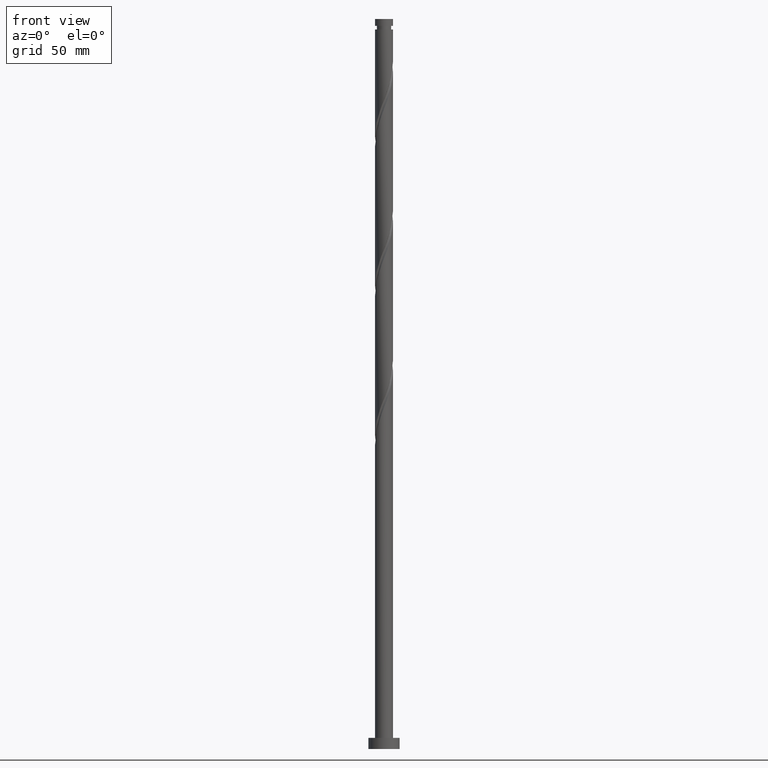
[diagram: clean part render]
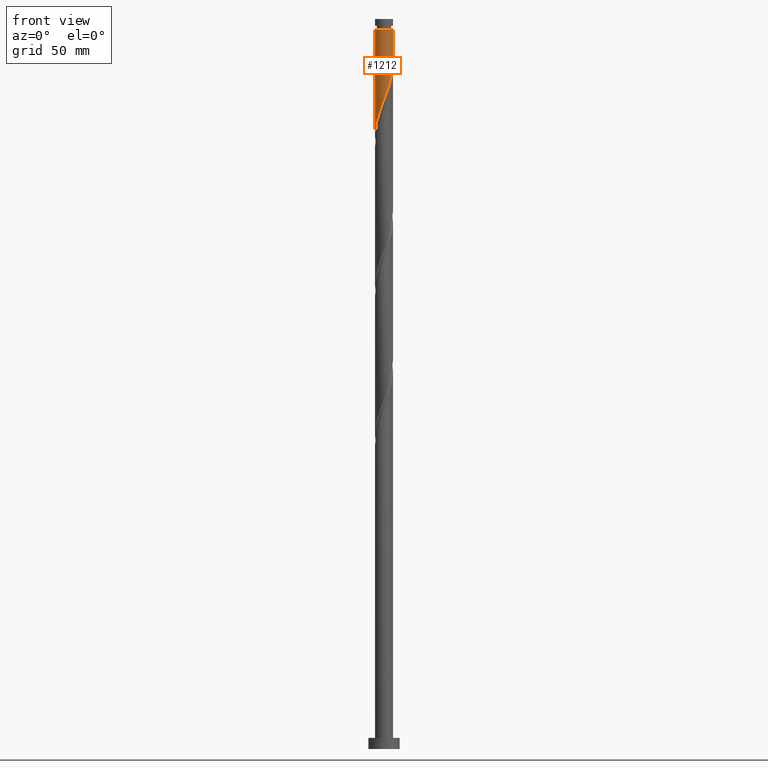
[diagram: same view with one face highlighted and labeled with its STEP entity id]
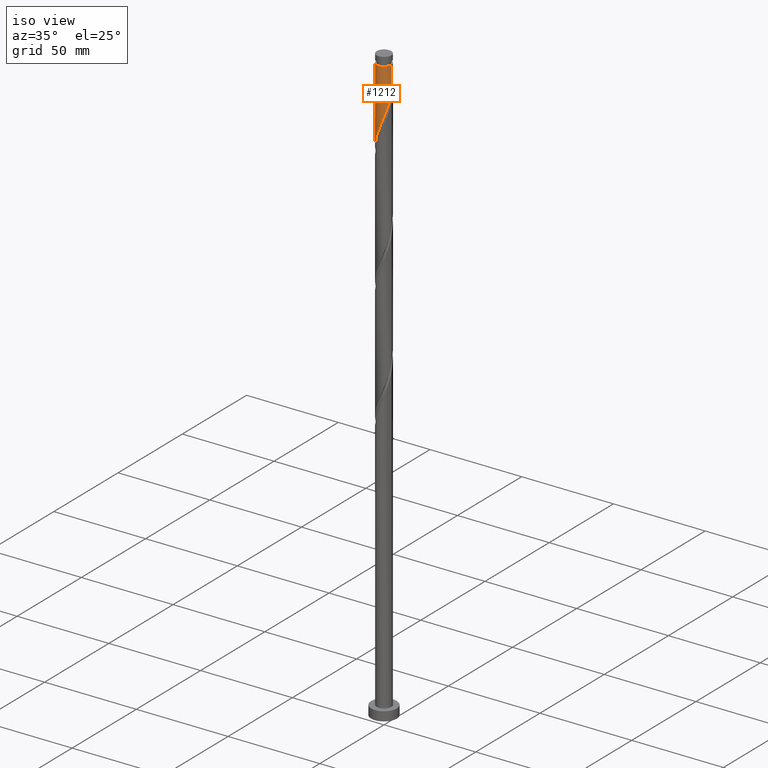
[diagram: same view with one face highlighted and labeled with its STEP entity id]
A machine part, front view. The second image highlights one B-rep face of the part: STEP entity #1212.
A second angle (iso view) of the same face is appended — the face is thin or edge-on in the first view.
In plain terms, the highlighted cylindrical surface (edge-blend (fillet) strip) has radius 4 mm, axis along (-0, -0, -1).
Its self-contained STEP definition (entity closure, byte-faithful):
#20 = CARTESIAN_POINT ( 'NONE',  ( 3.815322223626529397, -1.201381009464323579, 303.5306022984688070 ) ) ;
#97 = VERTEX_POINT ( 'NONE', #1484 ) ;
#170 = VECTOR ( 'NONE', #1488, 1000.000000000000000 ) ;
#182 = CARTESIAN_POINT ( 'NONE',  ( 0.4568176844692852789, -3.996006507438224276, 291.3083800762464648 ) ) ;
#192 = CARTESIAN_POINT ( 'NONE',  ( 3.689051991364074468, -1.602387534070728536, 302.4194911873575506 ) ) ;
#202 = CARTESIAN_POINT ( 'NONE',  ( -3.792814557677647969, -1.270652482415433715, 276.8639356318021782 ) ) ;
#213 = EDGE_LOOP ( 'NONE', ( #1141, #1260, #852, #1477 ) ) ;
#241 = DIRECTION ( 'NONE',  ( -0.000000000000000000, -0.000000000000000000, -1.000000000000000000 ) ) ;
#326 = CARTESIAN_POINT ( 'NONE',  ( -0.7959899496852983480, -3.919999999999999929, 287.9750467429132073 ) ) ;
#354 = VERTEX_POINT ( 'NONE', #910 ) ;
#355 = CARTESIAN_POINT ( 'NONE',  ( -3.926365515130356698, -0.8720116088262001020, 275.7528245206909219 ) ) ;
#364 = CARTESIAN_POINT ( 'NONE',  ( -1.593609487498514721, -3.668842978563503721, 285.7528245206910356 ) ) ;
#389 = EDGE_CURVE ( 'NONE', #627, #97, #407, .T. ) ;
#407 =( BOUNDED_CURVE ( )  B_SPLINE_CURVE ( 2, ( #1375, #1226, #1725, #1302, #20, #192, #683, #1267, #1459, #525, #1897, #494, #1293, #1908, #1757, #182, #1276, #1139, #326, #958, #364, #993, #487, #515, #817, #827, #1608, #1749, #202, #355, #1568, #807, #974 ),
 .UNSPECIFIED., .F., .T. ) 
 B_SPLINE_CURVE_WITH_KNOTS ( ( 3, 2, 2, 2, 2, 2, 2, 2, 2, 2, 2, 2, 2, 2, 2, 2, 3 ),
 ( 0.3045286012773113504, 0.3083333333333333481, 0.3166666666666666519, 0.3250000000000000111, 0.3333333333333333148, 0.3416666666666666741, 0.3499999999999999778, 0.3583333333333333370, 0.3666666666666666408, 0.3750000000000000000, 0.3833333333333333592, 0.3916666666666666630, 0.4000000000000000222, 0.4083333333333333259, 0.4166666666666666852, 0.4249999999999999889, 0.4295286012773115725 ),
 .UNSPECIFIED. ) 
 CURVE ( )  GEOMETRIC_REPRESENTATION_ITEM ( )  RATIONAL_B_SPLINE_CURVE ( ( 0.9066196499552254817, 0.9068171577856382060, 0.9090909090909370383, 0.9041108139711855340, 0.9090909090909370383, 0.9041108139711855340, 0.9090909090909370383, 0.9041108139711855340, 0.9090909090909370383, 0.9041108139711855340, 0.9090909090909370383, 0.9041108139711855340, 0.9090909090909370383, 0.9041108139711855340, 0.9090909090909370383, 0.9041108139711855340, 0.9090909090909370383, 0.9041108139711855340, 0.9090909090909370383, 0.9041108139711855340, 0.9090909090909370383, 0.9041108139711855340, 0.9090909090909370383, 0.9041108139711855340, 0.9090909090909370383, 0.9041108139711855340, 0.9090909090909370383, 0.9041108139711855340, 0.9090909090909370383, 0.9041108139711855340, 0.9090909090909370383, 0.9063845652764842553, 0.9066196499552254817 ) ) 
 REPRESENTATION_ITEM ( '' )  );
#428 = CARTESIAN_POINT ( 'NONE',  ( 0.000000000000000000, 0.000000000000000000, 326.0000000000000000 ) ) ;
#487 = CARTESIAN_POINT ( 'NONE',  ( -2.321580643721303794, -3.257339913901921680, 283.5306022984686933 ) ) ;
#494 = CARTESIAN_POINT ( 'NONE',  ( 2.042645993162201190, -3.464729102101767211, 295.7528245206909787 ) ) ;
#515 = CARTESIAN_POINT ( 'NONE',  ( -2.663940864372329465, -3.013331955735995660, 282.4194911873576075 ) ) ;
#520 = CARTESIAN_POINT ( 'NONE',  ( -4.000000000000000000, 0.000000000000000000, 326.0000000000000000 ) ) ;
#525 = CARTESIAN_POINT ( 'NONE',  ( 2.718366963203605824, -2.964326476232961749, 297.9750467429132641 ) ) ;
#542 = CARTESIAN_POINT ( 'NONE',  ( -3.999999999999972466, 0.000000000000000000, 321.3083800762465785 ) ) ;
#627 = VERTEX_POINT ( 'NONE', #1460 ) ;
#635 = DIRECTION ( 'NONE',  ( -1.000000000000000000, 0.000000000000000000, 0.000000000000000000 ) ) ;
#683 = CARTESIAN_POINT ( 'NONE',  ( 3.482167122072584942, -1.968378046503447942, 301.3083800762466353 ) ) ;
#739 = VECTOR ( 'NONE', #241, 1000.000000000000000 ) ;
#807 = CARTESIAN_POINT ( 'NONE',  ( -4.000000000000000888, -0.2278949497857238604, 274.0394146291525885 ) ) ;
#817 = CARTESIAN_POINT ( 'NONE',  ( -2.948087585633560437, -2.703475464551747365, 281.3083800762466353 ) ) ;
#827 = CARTESIAN_POINT ( 'NONE',  ( -3.232234306894790077, -2.393618973367496405, 280.1972689651353789 ) ) ;
#852 = ORIENTED_EDGE ( 'NONE', *, *, #1649, .T. ) ;
#855 = EDGE_CURVE ( 'NONE', #354, #627, #1609, .T. ) ;
#876 = CIRCLE ( 'NONE', #1761, 3.999999999999972466 ) ;
#910 = CARTESIAN_POINT ( 'NONE',  ( 3.999999999999972466, 4.898587196589395079E-16, 321.3083800762465785 ) ) ;
#958 = CARTESIAN_POINT ( 'NONE',  ( -1.207998551926750652, -3.836338085059161518, 286.8639356318020646 ) ) ;
#974 = CARTESIAN_POINT ( 'NONE',  ( -3.999999999999999112, 7.294826725284631319E-15, 273.4338233197680665 ) ) ;
#993 = CARTESIAN_POINT ( 'NONE',  ( -1.979220423070277013, -3.501347872067846367, 284.6417134095798360 ) ) ;
#1006 = CARTESIAN_POINT ( 'NONE',  ( 4.000000000000000000, 4.898587196589412829E-16, 326.0000000000000000 ) ) ;
#1060 = AXIS2_PLACEMENT_3D ( 'NONE', #428, #2014, #635 ) ;
#1097 = DIRECTION ( 'NONE',  ( -1.000000000000000000, 0.000000000000000000, 0.000000000000000000 ) ) ;
#1134 = DIRECTION ( 'NONE',  ( -0.000000000000000000, -0.000000000000000000, -1.000000000000000000 ) ) ;
#1139 = CARTESIAN_POINT ( 'NONE',  ( -0.3839813474438479313, -4.003661914940837008, 289.0861578540243499 ) ) ;
#1141 = ORIENTED_EDGE ( 'NONE', *, *, #855, .F. ) ;
#1212 = ADVANCED_FACE ( 'NONE', ( #1813 ), #1833, .T. ) ;
#1226 = CARTESIAN_POINT ( 'NONE',  ( 3.999999999999999112, -0.1913759971469955190, 306.2586081275373999 ) ) ;
#1260 = ORIENTED_EDGE ( 'NONE', *, *, #1426, .T. ) ;
#1267 = CARTESIAN_POINT ( 'NONE',  ( 3.275282252781091863, -2.334368558936170679, 300.1972689651354358 ) ) ;
#1271 = CARTESIAN_POINT ( 'NONE',  ( 0.000000000000000000, 0.000000000000000000, 321.3083800762465785 ) ) ;
#1276 = CARTESIAN_POINT ( 'NONE',  ( 0.03641816851271873628, -3.999834211189531086, 290.1972689651354358 ) ) ;
#1293 = CARTESIAN_POINT ( 'NONE',  ( 1.660148792339428692, -3.639217771347840191, 294.6417134095799497 ) ) ;
#1302 = CARTESIAN_POINT ( 'NONE',  ( 3.941592455888983437, -0.8003744848579144033, 304.6417134095798360 ) ) ;
#1375 = CARTESIAN_POINT ( 'NONE',  ( 3.999999999999999112, 2.287107559361780218E-15, 306.7671566531013809 ) ) ;
#1426 = EDGE_CURVE ( 'NONE', #354, #1662, #876, .T. ) ;
#1459 = CARTESIAN_POINT ( 'NONE',  ( 2.996824607992349065, -2.649347517584566436, 299.0861578540242931 ) ) ;
#1460 = CARTESIAN_POINT ( 'NONE',  ( 3.999999999999999112, 2.287107559361780218E-15, 306.7671566531013809 ) ) ;
#1477 = ORIENTED_EDGE ( 'NONE', *, *, #389, .F. ) ;
#1484 = CARTESIAN_POINT ( 'NONE',  ( -3.999999999999999112, 7.294826725284631319E-15, 273.4338233197680665 ) ) ;
#1488 = DIRECTION ( 'NONE',  ( -0.000000000000000000, -0.000000000000000000, -1.000000000000000000 ) ) ;
#1568 = CARTESIAN_POINT ( 'NONE',  ( -3.974115965681418672, -0.4543151893961394627, 274.6417134095798360 ) ) ;
#1608 = CARTESIAN_POINT ( 'NONE',  ( -3.445748953559866212, -2.031456164686082033, 279.0861578540244636 ) ) ;
#1609 = LINE ( 'NONE', #1006, #170 ) ;
#1634 = LINE ( 'NONE', #520, #739 ) ;
#1649 = EDGE_CURVE ( 'NONE', #1662, #97, #1634, .T. ) ;
#1662 = VERTEX_POINT ( 'NONE', #542 ) ;
#1725 = CARTESIAN_POINT ( 'NONE',  ( 3.981729436060731153, -0.3818778574459192887, 305.7528245206910924 ) ) ;
#1749 = CARTESIAN_POINT ( 'NONE',  ( -3.659263600224941015, -1.669293356004668549, 277.9750467429132073 ) ) ;
#1757 = CARTESIAN_POINT ( 'NONE',  ( 0.8672346379929689597, -3.904856474016070056, 292.4194911873577212 ) ) ;
#1761 = AXIS2_PLACEMENT_3D ( 'NONE', #1271, #1134, #1097 ) ;
#1813 = FACE_OUTER_BOUND ( 'NONE', #213, .T. ) ;
#1833 = CYLINDRICAL_SURFACE ( 'NONE', #1060, 4.000000000000000000 ) ;
#1897 = CARTESIAN_POINT ( 'NONE',  ( 2.380506478182902619, -3.214527789167365146, 296.8639356318022351 ) ) ;
#1908 = CARTESIAN_POINT ( 'NONE',  ( 1.277651591516653973, -3.813706440593911839, 293.5306022984688070 ) ) ;
#2014 = DIRECTION ( 'NONE',  ( -0.000000000000000000, -0.000000000000000000, -1.000000000000000000 ) ) ;